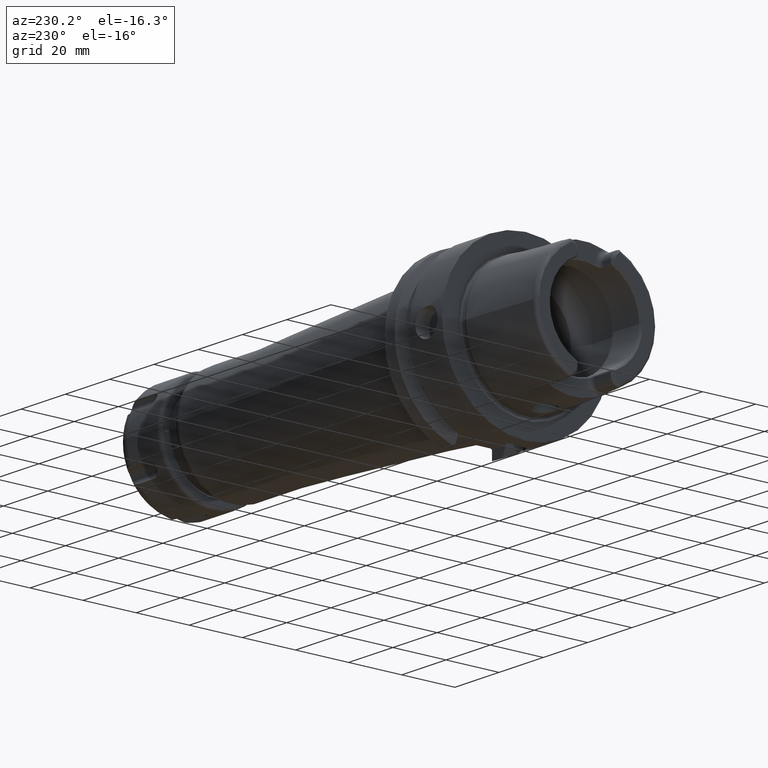
[diagram: clean part render]
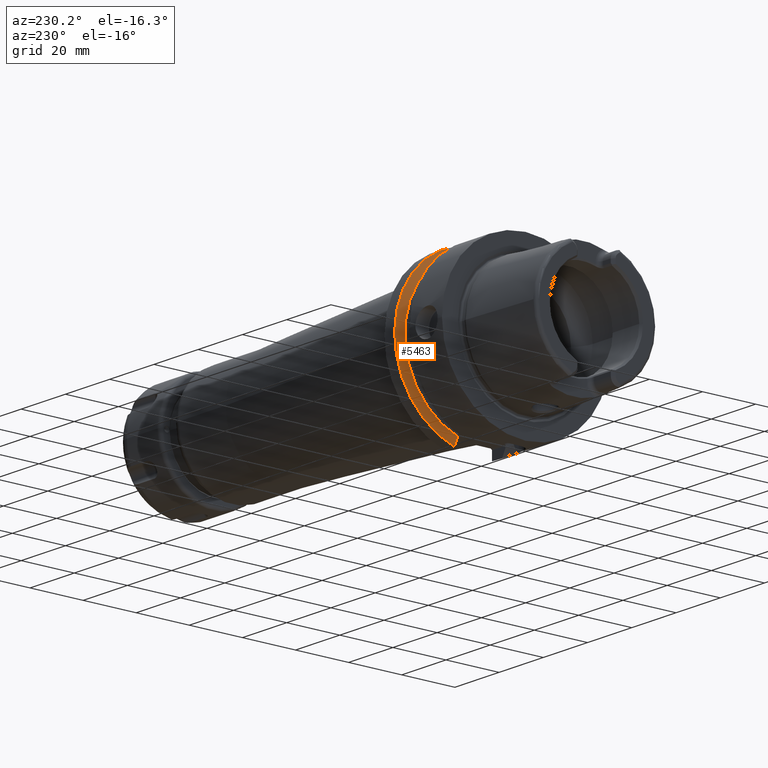
[diagram: same view with one face highlighted and labeled with its STEP entity id]
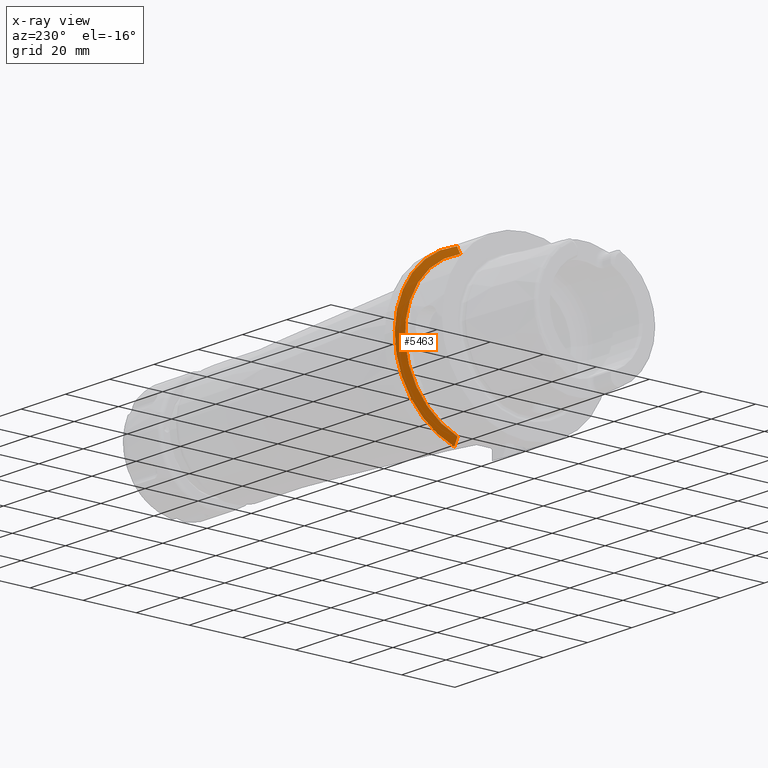
[diagram: x-ray of the same camera — body ghosted, the highlighted face saturated]
A machine part, auxiliary view. The second image highlights one B-rep face of the part: STEP entity #5463.
The next image is the same camera in x-ray: the body ghosted, the highlighted face saturated — about 0% of this face is hidden behind the body in this view.
In plain terms, the highlighted conical surface has half-angle 60 deg.
Its self-contained STEP definition (entity closure, byte-faithful):
#1967=CARTESIAN_POINT('',(2.137749907476E1,9.0175E0,-3.018169467989E1));
#1968=CARTESIAN_POINT('',(2.120260671566E1,9.0175E0,-2.986554088755E1));
#1969=CARTESIAN_POINT('',(2.085812292499E1,9.0175E0,-2.924200119110E1));
#1970=CARTESIAN_POINT('',(2.035750942268E1,9.0175E0,-2.833337204728E1));
#1971=CARTESIAN_POINT('',(2.003409260855E1,9.0175E0,-2.774465116011E1));
#1972=CARTESIAN_POINT('',(1.9875E1,9.0175E0,-2.745461174016E1));
#1974=CARTESIAN_POINT('',(2.137749907476E1,0.E0,0.E0));
#1975=DIRECTION('',(1.E0,0.E0,0.E0));
#1976=DIRECTION('',(0.E0,2.862698412698E-1,-9.581490374568E-1));
#1977=AXIS2_PLACEMENT_3D('',#1974,#1975,#1976);
#1979=CARTESIAN_POINT('',(1.9875E1,8.0175E0,2.776311772483E1));
#1980=CARTESIAN_POINT('',(2.003456921596E1,8.0175E0,2.805079344433E1));
#1981=CARTESIAN_POINT('',(2.035862308375E1,8.0175E0,2.863431787984E1));
#1982=CARTESIAN_POINT('',(2.085926872163E1,8.0175E0,2.953380309393E1));
#1983=CARTESIAN_POINT('',(2.120309833211E1,8.0175E0,3.015023700722E1));
#1984=CARTESIAN_POINT('',(2.137749907476E1,8.0175E0,3.046259499370E1));
#1986=CARTESIAN_POINT('',(1.9875E1,0.E0,0.E0));
#1987=DIRECTION('',(-1.E0,0.E0,0.E0));
#1988=DIRECTION('',(0.E0,2.774452312278E-1,9.607414551631E-1));
#1989=AXIS2_PLACEMENT_3D('',#1986,#1987,#1988);
#3158=CARTESIAN_POINT('',(1.9875E1,8.0175E0,2.776311772483E1));
#3159=VERTEX_POINT('',#3158);
#3161=VERTEX_POINT('',#1984);
#3182=CARTESIAN_POINT('',(1.9875E1,9.0175E0,-2.745461174016E1));
#3184=VERTEX_POINT('',#3182);
#3190=VERTEX_POINT('',#1967);
#5451=CARTESIAN_POINT('',(2.062624953738E1,0.E0,0.E0));
#5452=DIRECTION('',(1.E0,0.E0,0.E0));
#5453=DIRECTION('',(0.E0,-1.E0,0.E0));
#5454=AXIS2_PLACEMENT_3D('',#5451,#5452,#5453);
#5455=CONICAL_SURFACE('',#5454,3.019879763210E1,6.E1);
#5456=ORIENTED_EDGE('',*,*,#4699,.F.);
#5457=ORIENTED_EDGE('',*,*,#5392,.T.);
#5458=ORIENTED_EDGE('',*,*,#5363,.F.);
#5460=ORIENTED_EDGE('',*,*,#5459,.T.);
#5461=EDGE_LOOP('',(#5456,#5457,#5458,#5460));
#5462=FACE_OUTER_BOUND('',#5461,.F.);
#5463=ADVANCED_FACE('',(#5462),#5455,.T.);
#1973=B_SPLINE_CURVE_WITH_KNOTS('',3,(#1967,#1968,#1969,#1970,#1971,#1972),
.UNSPECIFIED.,.F.,.F.,(4,1,1,4),(0.E0,3.333333333333E-1,6.666666666667E-1,1.E0),
.UNSPECIFIED.);
#1978=CIRCLE('',#1977,3.15E1);
#1985=B_SPLINE_CURVE_WITH_KNOTS('',3,(#1979,#1980,#1981,#1982,#1983,#1984),
.UNSPECIFIED.,.F.,.F.,(4,1,1,4),(0.E0,3.333333333333E-1,6.666666666667E-1,1.E0),
.UNSPECIFIED.);
#1990=CIRCLE('',#1989,2.889759526419E1);
#4699=EDGE_CURVE('',#3190,#3184,#1973,.T.);
#5363=EDGE_CURVE('',#3159,#3161,#1985,.T.);
#5392=EDGE_CURVE('',#3190,#3161,#1978,.T.);
#5459=EDGE_CURVE('',#3159,#3184,#1990,.T.);